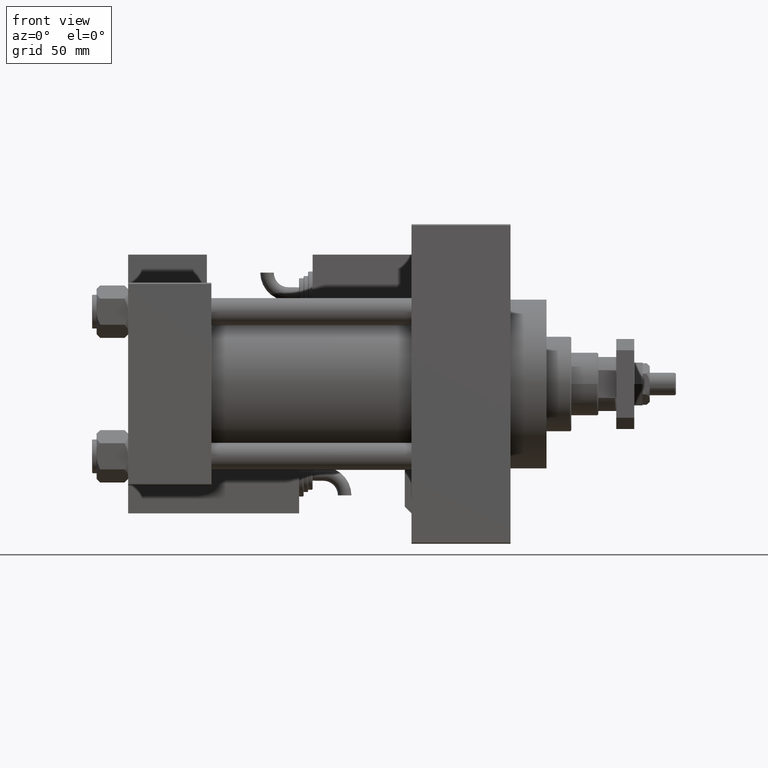
[diagram: clean part render]
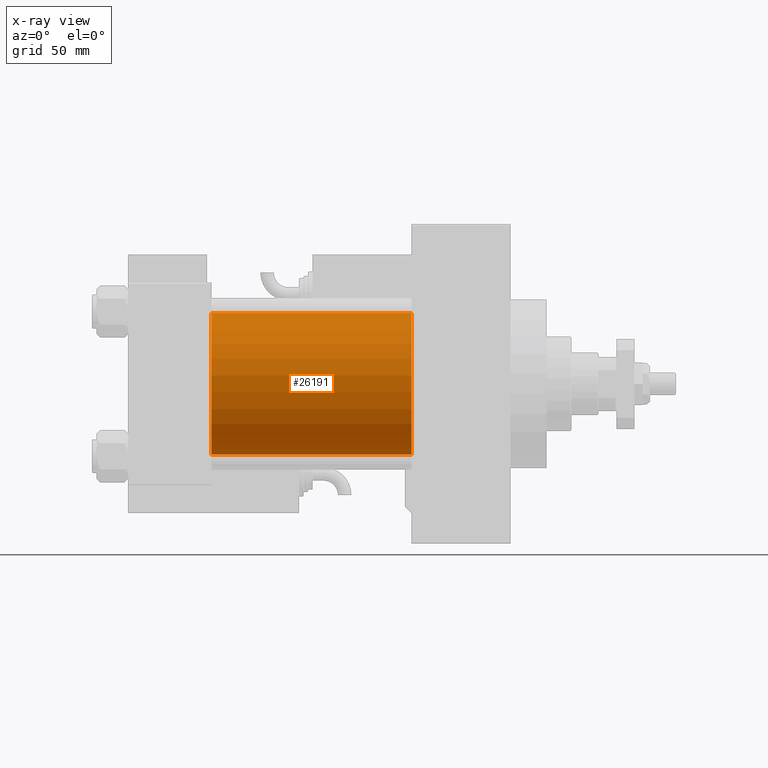
[diagram: x-ray — body ghosted, one internal face saturated and labeled with its STEP entity id]
A machine part, front view, then the same camera in x-ray: the body is ghosted and one INTERNAL B-rep face — a face not visible from any outside direction — is saturated and labeled: STEP entity #26191.
In plain terms, the highlighted cylindrical surface (partial cylindrical patch) has radius 31.5 mm, axis along (-1, -0, -0).
Its self-contained STEP definition (entity closure, byte-faithful):
#1598 = LINE ( 'NONE', #48042, #35304 ) ;
#3004 = VERTEX_POINT ( 'NONE', #18055 ) ;
#3583 = CARTESIAN_POINT ( 'NONE',  ( 126.0000000000000000, -2.602085213965210642E-15, 0.000000000000000000 ) ) ;
#6725 = AXIS2_PLACEMENT_3D ( 'NONE', #13844, #43036, #21911 ) ;
#9818 = CARTESIAN_POINT ( 'NONE',  ( 126.0000000000000000, -2.602085213965210642E-15, 31.50000000000000000 ) ) ;
#13244 = CYLINDRICAL_SURFACE ( 'NONE', #46356, 31.50000000000000000 ) ;
#13844 = CARTESIAN_POINT ( 'NONE',  ( 37.00000000000000000, -2.602085213965210642E-15, 0.000000000000000000 ) ) ;
#14066 = CARTESIAN_POINT ( 'NONE',  ( 126.0000000000000000, -2.602085213965210642E-15, 0.000000000000000000 ) ) ;
#14156 = EDGE_CURVE ( 'NONE', #19879, #48360, #40309, .T. ) ;
#14839 = ORIENTED_EDGE ( 'NONE', *, *, #43065, .F. ) ;
#17873 = LINE ( 'NONE', #9818, #25908 ) ;
#18055 = CARTESIAN_POINT ( 'NONE',  ( 37.00000000000000000, -2.602085213965210642E-15, 31.50000000000000000 ) ) ;
#19879 = VERTEX_POINT ( 'NONE', #25251 ) ;
#21911 = DIRECTION ( 'NONE',  ( 0.000000000000000000, 0.000000000000000000, -1.000000000000000000 ) ) ;
#21923 = ORIENTED_EDGE ( 'NONE', *, *, #40548, .T. ) ;
#23410 = CARTESIAN_POINT ( 'NONE',  ( 126.0000000000000000, 1.255552203348951850E-15, -31.50000000000000000 ) ) ;
#25251 = CARTESIAN_POINT ( 'NONE',  ( 126.0000000000000000, -2.602085213965210642E-15, 31.50000000000000000 ) ) ;
#25475 = EDGE_CURVE ( 'NONE', #19879, #3004, #17873, .T. ) ;
#25908 = VECTOR ( 'NONE', #51820, 1000.000000000000000 ) ;
#26191 = ADVANCED_FACE ( 'NONE', ( #42985 ), #13244, .F. ) ;
#28540 = ORIENTED_EDGE ( 'NONE', *, *, #14156, .T. ) ;
#28793 = AXIS2_PLACEMENT_3D ( 'NONE', #3583, #38047, #46120 ) ;
#31003 = DIRECTION ( 'NONE',  ( -1.000000000000000000, -0.000000000000000000, -0.000000000000000000 ) ) ;
#35304 = VECTOR ( 'NONE', #48596, 1000.000000000000000 ) ;
#37798 = VERTEX_POINT ( 'NONE', #38857 ) ;
#38047 = DIRECTION ( 'NONE',  ( 1.000000000000000000, 0.000000000000000000, 0.000000000000000000 ) ) ;
#38857 = CARTESIAN_POINT ( 'NONE',  ( 37.00000000000000000, 1.255552203348951850E-15, -31.50000000000000000 ) ) ;
#40309 = CIRCLE ( 'NONE', #28793, 31.50000000000000000 ) ;
#40548 = EDGE_CURVE ( 'NONE', #48360, #37798, #1598, .T. ) ;
#41883 = ORIENTED_EDGE ( 'NONE', *, *, #25475, .F. ) ;
#42985 = FACE_OUTER_BOUND ( 'NONE', #51206, .T. ) ;
#43036 = DIRECTION ( 'NONE',  ( 1.000000000000000000, 0.000000000000000000, 0.000000000000000000 ) ) ;
#43065 = EDGE_CURVE ( 'NONE', #3004, #37798, #50233, .T. ) ;
#43802 = DIRECTION ( 'NONE',  ( 0.000000000000000000, 0.000000000000000000, 1.000000000000000000 ) ) ;
#46120 = DIRECTION ( 'NONE',  ( 0.000000000000000000, 0.000000000000000000, -1.000000000000000000 ) ) ;
#46356 = AXIS2_PLACEMENT_3D ( 'NONE', #14066, #31003, #43802 ) ;
#48042 = CARTESIAN_POINT ( 'NONE',  ( 126.0000000000000000, 1.255552203348951850E-15, -31.50000000000000000 ) ) ;
#48360 = VERTEX_POINT ( 'NONE', #23410 ) ;
#48596 = DIRECTION ( 'NONE',  ( -1.000000000000000000, -0.000000000000000000, -0.000000000000000000 ) ) ;
#50233 = CIRCLE ( 'NONE', #6725, 31.50000000000000000 ) ;
#51206 = EDGE_LOOP ( 'NONE', ( #28540, #21923, #14839, #41883 ) ) ;
#51820 = DIRECTION ( 'NONE',  ( -1.000000000000000000, -0.000000000000000000, -0.000000000000000000 ) ) ;